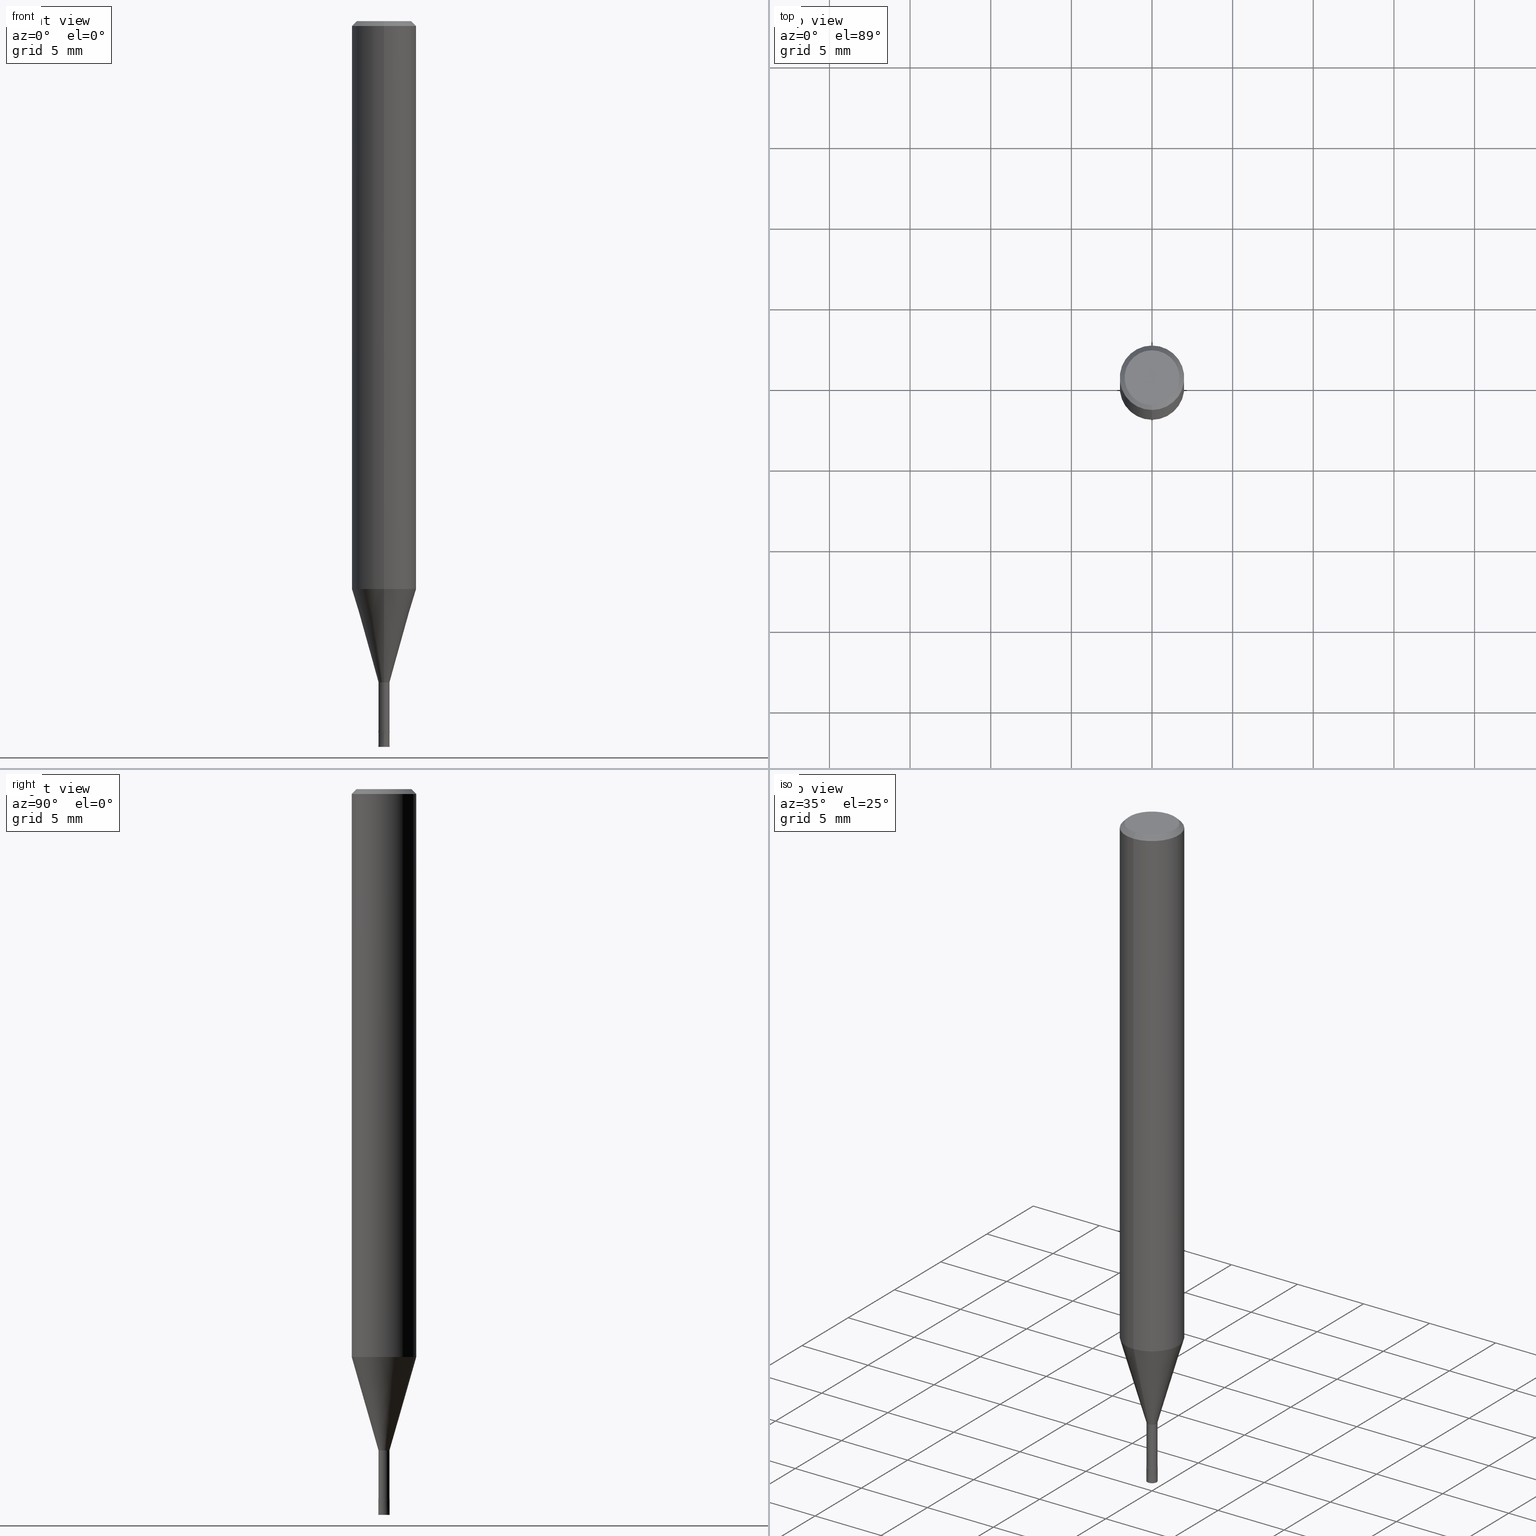
[diagram: canonical four-view strip — front | top / right | iso, engineering-drawing reading convention]
A machine part, canonical four-view strip (front | top / right | iso — engineering-drawing reading convention). The complete STEP part file that produces these views, byte-faithful:
ISO-10303-21;
HEADER;
FILE_DESCRIPTION(('no description'),'unknown implementation level');
FILE_NAME('HLS2007-040-Huellk.stp','  ',('CIMSOURCE GmbH'),('CADClick - KiM GmbH - www.kimweb.de'),'unknown preprocess','ACIS','unknown authorization');
FILE_SCHEMA(('automotive_design'));
ENDSEC;
DATA;
#1=MECHANICAL_DESIGN_GEOMETRIC_PRESENTATION_REPRESENTATION(' ',(#14,#15,#16,#17,#18,#19,#20,#21,#22,#23,#24,#25,#26,#27,#28,#29,#30,#31,#32,#33,#34,#35,#36,#37,#38,#39,#40,#41,#42,#43,#44,#45,#46,#47,#48,#49,#50,#51,#52,#53,#54,#55,#56,#57,#58,#59,#60,#61,#62,#63,#64,#65,#66,#67,#68,#69,#70,#71,#72),#10);
#2=PRODUCT_DEFINITION_CONTEXT('',#73,'design');
#3=APPLICATION_PROTOCOL_DEFINITION('INTERNATIONAL STANDARD','automotive_design',1994,#73);
#4=PRODUCT_CATEGORY_RELATIONSHIP('NONE','NONE',#74,#75);
#5=SHAPE_DEFINITION_REPRESENTATION(#76,#77);
#6=PRODUCT_DEFINITION_CONTEXT('',#78,'design');
#7=APPLICATION_PROTOCOL_DEFINITION('INTERNATIONAL STANDARD','automotive_design',1994,#78);
#8=PRODUCT_CATEGORY_RELATIONSHIP('NONE','NONE',#79,#80);
#9=SHAPE_DEFINITION_REPRESENTATION(#81,#82);
#10= (GEOMETRIC_REPRESENTATION_CONTEXT(3)GLOBAL_UNCERTAINTY_ASSIGNED_CONTEXT((#85))GLOBAL_UNIT_ASSIGNED_CONTEXT((#87,#88,#89))REPRESENTATION_CONTEXT('NONE','WORKSPACE'));
#14=STYLED_ITEM('',(#91),#92);
#15=STYLED_ITEM('',(#93),#94);
#16=STYLED_ITEM('',(#95),#96);
#17=STYLED_ITEM('',(#97),#98);
#18=STYLED_ITEM('',(#99),#100);
#19=STYLED_ITEM('',(#101),#102);
#20=STYLED_ITEM('',(#103),#104);
#21=STYLED_ITEM('',(#105),#106);
#22=STYLED_ITEM('',(#107),#108);
#23=STYLED_ITEM('',(#109),#110);
#24=STYLED_ITEM('',(#111),#112);
#25=STYLED_ITEM('',(#113),#114);
#26=STYLED_ITEM('',(#115),#116);
#27=STYLED_ITEM('',(#117),#118);
#28=STYLED_ITEM('',(#119),#120);
#29=STYLED_ITEM('',(#121),#122);
#30=STYLED_ITEM('',(#123),#124);
#31=STYLED_ITEM('',(#125),#126);
#32=STYLED_ITEM('',(#127),#128);
#33=STYLED_ITEM('',(#129),#130);
#34=STYLED_ITEM('',(#131),#132);
#35=STYLED_ITEM('',(#133),#134);
#36=STYLED_ITEM('',(#135),#136);
#37=STYLED_ITEM('',(#137),#138);
#38=STYLED_ITEM('',(#139),#140);
#39=STYLED_ITEM('',(#141),#142);
#40=STYLED_ITEM('',(#143),#144);
#41=STYLED_ITEM('',(#145),#146);
#42=STYLED_ITEM('',(#147),#148);
#43=STYLED_ITEM('',(#149),#150);
#44=STYLED_ITEM('',(#151),#152);
#45=STYLED_ITEM('',(#153),#154);
#46=STYLED_ITEM('',(#155),#156);
#47=STYLED_ITEM('',(#157),#158);
#48=STYLED_ITEM('',(#159),#160);
#49=STYLED_ITEM('',(#161),#162);
#50=STYLED_ITEM('',(#163),#164);
#51=STYLED_ITEM('',(#165),#166);
#52=STYLED_ITEM('',(#167),#168);
#53=STYLED_ITEM('',(#169),#170);
#54=STYLED_ITEM('',(#171),#172);
#55=STYLED_ITEM('',(#173),#174);
#56=STYLED_ITEM('',(#175),#176);
#57=STYLED_ITEM('',(#177),#178);
#58=STYLED_ITEM('',(#179),#180);
#59=STYLED_ITEM('',(#181),#182);
#60=STYLED_ITEM('',(#183),#184);
#61=STYLED_ITEM('',(#185),#186);
#62=STYLED_ITEM('',(#187),#188);
#63=STYLED_ITEM('',(#189),#190);
#64=STYLED_ITEM('',(#191),#192);
#65=STYLED_ITEM('',(#193),#194);
#66=STYLED_ITEM('',(#195),#196);
#67=STYLED_ITEM('',(#197),#198);
#68=STYLED_ITEM('',(#199),#200);
#69=STYLED_ITEM('',(#201),#202);
#70=STYLED_ITEM('',(#203),#204);
#71=STYLED_ITEM('',(#205),#206);
#72=STYLED_ITEM('',(#207),#208);
#73=APPLICATION_CONTEXT(' ');
#74=PRODUCT_CATEGORY('part','NONE');
#75=PRODUCT_RELATED_PRODUCT_CATEGORY('detail',' ',(#209));
#76=PRODUCT_DEFINITION_SHAPE('NONE','NONE',#210);
#77=ADVANCED_BREP_SHAPE_REPRESENTATION('1',(#186,#211),#10);
#78=APPLICATION_CONTEXT(' ');
#79=PRODUCT_CATEGORY('part','NONE');
#80=PRODUCT_RELATED_PRODUCT_CATEGORY('detail',' ',(#212));
#81=PRODUCT_DEFINITION_SHAPE('NONE','NONE',#213);
#82=ADVANCED_BREP_SHAPE_REPRESENTATION('2',(#114,#214),#10);
#85=UNCERTAINTY_MEASURE_WITH_UNIT(LENGTH_MEASURE(1.0E-006),#87,'','');
#87= (CONVERSION_BASED_UNIT('MILLIMETRE',#217)LENGTH_UNIT()NAMED_UNIT(#220));
#88= (NAMED_UNIT(#222)PLANE_ANGLE_UNIT()SI_UNIT($,.RADIAN.));
#89= (NAMED_UNIT(#222)SOLID_ANGLE_UNIT()SI_UNIT($,.STERADIAN.));
#91=PRESENTATION_STYLE_ASSIGNMENT((#228));
#92=ADVANCED_FACE('',(#229),#230,.T.);
#93=PRESENTATION_STYLE_ASSIGNMENT((#231));
#94=ADVANCED_FACE('',(#232),#233,.T.);
#95=PRESENTATION_STYLE_ASSIGNMENT((#234));
#96=ADVANCED_FACE('',(#235),#236,.T.);
#97=PRESENTATION_STYLE_ASSIGNMENT((#237));
#98=EDGE_CURVE('',#112,#108,#238,.T.);
#99=PRESENTATION_STYLE_ASSIGNMENT((#239));
#100=EDGE_CURVE('',#146,#194,#240,.T.);
#101=PRESENTATION_STYLE_ASSIGNMENT((#241));
#102=VERTEX_POINT('',#242);
#103=PRESENTATION_STYLE_ASSIGNMENT((#243));
#104=VERTEX_POINT('',#244);
#105=PRESENTATION_STYLE_ASSIGNMENT((#245));
#106=EDGE_CURVE('',#104,#184,#246,.T.);
#107=PRESENTATION_STYLE_ASSIGNMENT((#247));
#108=VERTEX_POINT('',#248);
#109=PRESENTATION_STYLE_ASSIGNMENT((#249));
#110=VERTEX_POINT('',#250);
#111=PRESENTATION_STYLE_ASSIGNMENT((#251));
#112=VERTEX_POINT('',#252);
#113=PRESENTATION_STYLE_ASSIGNMENT((#253));
#114=MANIFOLD_SOLID_BREP('2',#254);
#115=PRESENTATION_STYLE_ASSIGNMENT((#255));
#116=EDGE_CURVE('',#192,#200,#256,.T.);
#117=PRESENTATION_STYLE_ASSIGNMENT((#257));
#118=EDGE_CURVE('',#194,#146,#258,.T.);
#119=PRESENTATION_STYLE_ASSIGNMENT((#259));
#120=ADVANCED_FACE('',(#260),#261,.T.);
#121=PRESENTATION_STYLE_ASSIGNMENT((#262));
#122=EDGE_CURVE('',#184,#104,#263,.T.);
#123=PRESENTATION_STYLE_ASSIGNMENT((#264));
#124=EDGE_CURVE('',#188,#130,#265,.T.);
#125=PRESENTATION_STYLE_ASSIGNMENT((#266));
#126=EDGE_CURVE('',#112,#154,#267,.T.);
#127=PRESENTATION_STYLE_ASSIGNMENT((#268));
#128=ADVANCED_FACE('',(#269),#270,.T.);
#129=PRESENTATION_STYLE_ASSIGNMENT((#271));
#130=VERTEX_POINT('',#272);
#131=PRESENTATION_STYLE_ASSIGNMENT((#273));
#132=ADVANCED_FACE('',(#274),#275,.T.);
#133=PRESENTATION_STYLE_ASSIGNMENT((#276));
#134=EDGE_CURVE('',#154,#112,#277,.T.);
#135=PRESENTATION_STYLE_ASSIGNMENT((#278));
#136=EDGE_CURVE('',#192,#146,#279,.T.);
#137=PRESENTATION_STYLE_ASSIGNMENT((#280));
#138=EDGE_CURVE('',#110,#154,#281,.T.);
#139=PRESENTATION_STYLE_ASSIGNMENT((#282));
#140=VERTEX_POINT('',#283);
#141=PRESENTATION_STYLE_ASSIGNMENT((#284));
#142=EDGE_CURVE('',#140,#196,#285,.T.);
#143=PRESENTATION_STYLE_ASSIGNMENT((#286));
#144=ADVANCED_FACE('',(#287),#288,.T.);
#145=PRESENTATION_STYLE_ASSIGNMENT((#289));
#146=VERTEX_POINT('',#290);
#147=PRESENTATION_STYLE_ASSIGNMENT((#291));
#148=EDGE_CURVE('',#130,#112,#292,.T.);
#149=PRESENTATION_STYLE_ASSIGNMENT((#293));
#150=EDGE_CURVE('',#196,#140,#294,.T.);
#151=PRESENTATION_STYLE_ASSIGNMENT((#295));
#152=EDGE_CURVE('',#110,#108,#296,.T.);
#153=PRESENTATION_STYLE_ASSIGNMENT((#297));
#154=VERTEX_POINT('',#298);
#155=PRESENTATION_STYLE_ASSIGNMENT((#299));
#156=ADVANCED_FACE('',(#300),#301,.T.);
#157=PRESENTATION_STYLE_ASSIGNMENT((#302));
#158=ADVANCED_FACE('',(#303,#304),#305,.T.);
#159=PRESENTATION_STYLE_ASSIGNMENT((#306));
#160=ADVANCED_FACE('',(#307),#308,.T.);
#161=PRESENTATION_STYLE_ASSIGNMENT((#309));
#162=EDGE_CURVE('',#154,#188,#310,.T.);
#163=PRESENTATION_STYLE_ASSIGNMENT((#311));
#164=EDGE_CURVE('',#140,#184,#312,.T.);
#165=PRESENTATION_STYLE_ASSIGNMENT((#313));
#166=EDGE_CURVE('',#108,#110,#314,.T.);
#167=PRESENTATION_STYLE_ASSIGNMENT((#315));
#168=ADVANCED_FACE('',(#316),#317,.T.);
#169=PRESENTATION_STYLE_ASSIGNMENT((#318));
#170=ADVANCED_FACE('',(#319),#320,.T.);
#171=PRESENTATION_STYLE_ASSIGNMENT((#321));
#172=ADVANCED_FACE('',(#322),#323,.T.);
#173=PRESENTATION_STYLE_ASSIGNMENT((#324));
#174=EDGE_CURVE('',#130,#188,#325,.T.);
#175=PRESENTATION_STYLE_ASSIGNMENT((#326));
#176=EDGE_CURVE('',#204,#104,#327,.T.);
#177=PRESENTATION_STYLE_ASSIGNMENT((#328));
#178=EDGE_CURVE('',#104,#196,#329,.T.);
#179=PRESENTATION_STYLE_ASSIGNMENT((#330));
#180=EDGE_CURVE('',#204,#102,#331,.T.);
#181=PRESENTATION_STYLE_ASSIGNMENT((#332));
#182=EDGE_CURVE('',#194,#200,#333,.T.);
#183=PRESENTATION_STYLE_ASSIGNMENT((#334));
#184=VERTEX_POINT('',#335);
#185=PRESENTATION_STYLE_ASSIGNMENT((#336));
#186=MANIFOLD_SOLID_BREP('1',#337);
#187=PRESENTATION_STYLE_ASSIGNMENT((#338));
#188=VERTEX_POINT('',#339);
#189=PRESENTATION_STYLE_ASSIGNMENT((#340));
#190=EDGE_CURVE('',#200,#192,#341,.T.);
#191=PRESENTATION_STYLE_ASSIGNMENT((#342));
#192=VERTEX_POINT('',#343);
#193=PRESENTATION_STYLE_ASSIGNMENT((#344));
#194=VERTEX_POINT('',#345);
#195=PRESENTATION_STYLE_ASSIGNMENT((#346));
#196=VERTEX_POINT('',#347);
#197=PRESENTATION_STYLE_ASSIGNMENT((#348));
#198=EDGE_CURVE('',#102,#204,#349,.T.);
#199=PRESENTATION_STYLE_ASSIGNMENT((#350));
#200=VERTEX_POINT('',#351);
#201=PRESENTATION_STYLE_ASSIGNMENT((#352));
#202=ADVANCED_FACE('',(#353),#354,.T.);
#203=PRESENTATION_STYLE_ASSIGNMENT((#355));
#204=VERTEX_POINT('',#356);
#205=PRESENTATION_STYLE_ASSIGNMENT((#357));
#206=ADVANCED_FACE('',(#358),#359,.T.);
#207=PRESENTATION_STYLE_ASSIGNMENT((#360));
#208=EDGE_CURVE('',#184,#102,#361,.T.);
#209=PRODUCT('1','1','PART-1-DESC',(#362));
#210=PRODUCT_DEFINITION('NONE','NONE',#363,#2);
#211=AXIS2_PLACEMENT_3D('',#364,#365,#366);
#212=PRODUCT('2','2','PART-2-DESC',(#367));
#213=PRODUCT_DEFINITION('NONE','NONE',#368,#6);
#214=AXIS2_PLACEMENT_3D('',#369,#370,#371);
#217=LENGTH_MEASURE_WITH_UNIT(LENGTH_MEASURE(1.0),#372);
#220=DIMENSIONAL_EXPONENTS(1.0,0.0,0.0,0.0,0.0,0.0,0.0);
#222=DIMENSIONAL_EXPONENTS(0.0,0.0,0.0,0.0,0.0,0.0,0.0);
#228=SURFACE_STYLE_USAGE(.BOTH.,#373);
#229=FACE_OUTER_BOUND('',#374,.T.);
#230=PLANE('',#375);
#231=SURFACE_STYLE_USAGE(.BOTH.,#376);
#232=FACE_OUTER_BOUND('',#377,.T.);
#233=PLANE('',#378);
#234=SURFACE_STYLE_USAGE(.BOTH.,#379);
#235=FACE_OUTER_BOUND('',#380,.T.);
#236=CYLINDRICAL_SURFACE('',#381,2.0);
#237=CURVE_STYLE('',#382,POSITIVE_LENGTH_MEASURE(1.0E-006),#383);
#238=LINE('',#384,#385);
#239=CURVE_STYLE('',#386,POSITIVE_LENGTH_MEASURE(1.0E-006),#387);
#240=CIRCLE('',#388,0.35);
#241=POINT_STYLE(' ',#389,POSITIVE_LENGTH_MEASURE(1.0E-006),#390);
#242=CARTESIAN_POINT('',(0.0,2.0,-35.211));
#243=POINT_STYLE(' ',#391,POSITIVE_LENGTH_MEASURE(1.0E-006),#392);
#244=CARTESIAN_POINT('',(2.44921270764475E-016,-2.0,-0.299999999999997));
#245=CURVE_STYLE('',#393,POSITIVE_LENGTH_MEASURE(1.0E-006),#394);
#246=CIRCLE('',#395,2.0);
#247=POINT_STYLE(' ',#396,POSITIVE_LENGTH_MEASURE(1.0E-006),#397);
#248=CARTESIAN_POINT('',(0.0,0.33995,-44.0));
#249=POINT_STYLE(' ',#398,POSITIVE_LENGTH_MEASURE(1.0E-006),#399);
#250=CARTESIAN_POINT('',(4.16304929981917E-017,-0.33995,-44.0));
#251=POINT_STYLE(' ',#400,POSITIVE_LENGTH_MEASURE(1.0E-006),#401);
#252=CARTESIAN_POINT('',(0.0,0.33995,-41.0));
#253=SURFACE_STYLE_USAGE(.BOTH.,#402);
#254=CLOSED_SHELL('',(#168,#94,#144,#92));
#255=CURVE_STYLE('',#403,POSITIVE_LENGTH_MEASURE(1.0E-006),#404);
#256=CIRCLE('',#405,0.3499);
#257=CURVE_STYLE('',#406,POSITIVE_LENGTH_MEASURE(1.0E-006),#407);
#258=CIRCLE('',#408,0.35);
#259=SURFACE_STYLE_USAGE(.BOTH.,#409);
#260=FACE_OUTER_BOUND('',#410,.T.);
#261=CYLINDRICAL_SURFACE('',#411,0.33995);
#262=CURVE_STYLE('',#412,POSITIVE_LENGTH_MEASURE(1.0E-006),#413);
#263=CIRCLE('',#414,2.0);
#264=CURVE_STYLE('',#415,POSITIVE_LENGTH_MEASURE(1.0E-006),#416);
#265=CIRCLE('',#417,1.99995);
#266=CURVE_STYLE('',#418,POSITIVE_LENGTH_MEASURE(1.0E-006),#419);
#267=CIRCLE('',#420,0.33995);
#268=SURFACE_STYLE_USAGE(.BOTH.,#421);
#269=FACE_OUTER_BOUND('',#422,.T.);
#270=PLANE('',#423);
#271=POINT_STYLE(' ',#424,POSITIVE_LENGTH_MEASURE(1.0E-006),#425);
#272=CARTESIAN_POINT('',(0.0,1.99995,-35.211));
#273=SURFACE_STYLE_USAGE(.BOTH.,#426);
#274=FACE_OUTER_BOUND('',#427,.T.);
#275=CYLINDRICAL_SURFACE('',#428,2.0);
#276=CURVE_STYLE('',#429,POSITIVE_LENGTH_MEASURE(1.0E-006),#430);
#277=CIRCLE('',#431,0.33995);
#278=CURVE_STYLE('',#432,POSITIVE_LENGTH_MEASURE(1.0E-006),#433);
#279=LINE('',#434,#435);
#280=CURVE_STYLE('',#436,POSITIVE_LENGTH_MEASURE(1.0E-006),#437);
#281=LINE('',#438,#439);
#282=POINT_STYLE(' ',#440,POSITIVE_LENGTH_MEASURE(1.0E-006),#441);
#283=CARTESIAN_POINT('',(0.0,1.7,0.0));
#284=CURVE_STYLE('',#442,POSITIVE_LENGTH_MEASURE(1.0E-006),#443);
#285=CIRCLE('',#444,1.7);
#286=SURFACE_STYLE_USAGE(.BOTH.,#445);
#287=FACE_OUTER_BOUND('',#446,.T.);
#288=CONICAL_SURFACE('',#447,0.34995,9.99999996666557E-005);
#289=POINT_STYLE(' ',#448,POSITIVE_LENGTH_MEASURE(1.0E-006),#449);
#290=CARTESIAN_POINT('',(0.0,0.35,-45.0));
#291=CURVE_STYLE('',#450,POSITIVE_LENGTH_MEASURE(1.0E-006),#451);
#292=LINE('',#452,#453);
#293=CURVE_STYLE('',#454,POSITIVE_LENGTH_MEASURE(1.0E-006),#455);
#294=CIRCLE('',#456,1.7);
#295=CURVE_STYLE('',#457,POSITIVE_LENGTH_MEASURE(1.0E-006),#458);
#296=CIRCLE('',#459,0.33995);
#297=POINT_STYLE(' ',#460,POSITIVE_LENGTH_MEASURE(1.0E-006),#461);
#298=CARTESIAN_POINT('',(4.16304929981917E-017,-0.33995,-41.0));
#299=SURFACE_STYLE_USAGE(.BOTH.,#462);
#300=FACE_OUTER_BOUND('',#463,.T.);
#301=PLANE('',#464);
#302=SURFACE_STYLE_USAGE(.BOTH.,#465);
#303=FACE_OUTER_BOUND('',#466,.T.);
#304=FACE_BOUND('',#467,.T.);
#305=PLANE('',#468);
#306=SURFACE_STYLE_USAGE(.BOTH.,#469);
#307=FACE_OUTER_BOUND('',#470,.T.);
#308=CONICAL_SURFACE('',#471,1.85,0.785398163397453);
#309=CURVE_STYLE('',#472,POSITIVE_LENGTH_MEASURE(1.0E-006),#473);
#310=LINE('',#474,#475);
#311=CURVE_STYLE('',#476,POSITIVE_LENGTH_MEASURE(1.0E-006),#477);
#312=LINE('',#478,#479);
#313=CURVE_STYLE('',#480,POSITIVE_LENGTH_MEASURE(1.0E-006),#481);
#314=CIRCLE('',#482,0.33995);
#315=SURFACE_STYLE_USAGE(.BOTH.,#483);
#316=FACE_OUTER_BOUND('',#484,.T.);
#317=CONICAL_SURFACE('',#485,0.34995,9.99999996666557E-005);
#318=SURFACE_STYLE_USAGE(.BOTH.,#486);
#319=FACE_OUTER_BOUND('',#487,.T.);
#320=CYLINDRICAL_SURFACE('',#488,0.33995);
#321=SURFACE_STYLE_USAGE(.BOTH.,#489);
#322=FACE_OUTER_BOUND('',#490,.T.);
#323=CONICAL_SURFACE('',#491,1.16995,0.279257622355071);
#324=CURVE_STYLE('',#492,POSITIVE_LENGTH_MEASURE(1.0E-006),#493);
#325=CIRCLE('',#494,1.99995);
#326=CURVE_STYLE('',#495,POSITIVE_LENGTH_MEASURE(1.0E-006),#496);
#327=LINE('',#497,#498);
#328=CURVE_STYLE('',#499,POSITIVE_LENGTH_MEASURE(1.0E-006),#500);
#329=LINE('',#501,#502);
#330=CURVE_STYLE('',#503,POSITIVE_LENGTH_MEASURE(1.0E-006),#504);
#331=CIRCLE('',#505,2.0);
#332=CURVE_STYLE('',#506,POSITIVE_LENGTH_MEASURE(1.0E-006),#507);
#333=LINE('',#508,#509);
#334=POINT_STYLE(' ',#510,POSITIVE_LENGTH_MEASURE(1.0E-006),#511);
#335=CARTESIAN_POINT('',(0.0,2.0,-0.299999999999997));
#336=SURFACE_STYLE_USAGE(.BOTH.,#512);
#337=CLOSED_SHELL('',(#170,#202,#132,#206,#158,#156,#160,#96,#172,#120,#128));
#338=POINT_STYLE(' ',#513,POSITIVE_LENGTH_MEASURE(1.0E-006),#514);
#339=CARTESIAN_POINT('',(2.44915147732706E-016,-1.99995,-35.211));
#340=CURVE_STYLE('',#515,POSITIVE_LENGTH_MEASURE(1.0E-006),#516);
#341=CIRCLE('',#517,0.3499);
#342=POINT_STYLE(' ',#518,POSITIVE_LENGTH_MEASURE(1.0E-006),#519);
#343=CARTESIAN_POINT('',(0.0,0.3499,-44.0));
#344=POINT_STYLE(' ',#520,POSITIVE_LENGTH_MEASURE(1.0E-006),#521);
#345=CARTESIAN_POINT('',(4.28612223837832E-017,-0.35,-45.0));
#346=POINT_STYLE(' ',#522,POSITIVE_LENGTH_MEASURE(1.0E-006),#523);
#347=CARTESIAN_POINT('',(2.08183080149804E-016,-1.7,0.0));
#348=CURVE_STYLE('',#524,POSITIVE_LENGTH_MEASURE(1.0E-006),#525);
#349=CIRCLE('',#526,2.0);
#350=POINT_STYLE(' ',#527,POSITIVE_LENGTH_MEASURE(1.0E-006),#528);
#351=CARTESIAN_POINT('',(4.2848976320245E-017,-0.3499,-44.0));
#352=SURFACE_STYLE_USAGE(.BOTH.,#529);
#353=FACE_OUTER_BOUND('',#530,.T.);
#354=CONICAL_SURFACE('',#531,1.16995,0.279257622355071);
#355=POINT_STYLE(' ',#532,POSITIVE_LENGTH_MEASURE(1.0E-006),#533);
#356=CARTESIAN_POINT('',(2.44921270764475E-016,-2.0,-35.211));
#357=SURFACE_STYLE_USAGE(.BOTH.,#534);
#358=FACE_OUTER_BOUND('',#535,.T.);
#359=CONICAL_SURFACE('',#536,1.85,0.785398163397453);
#360=CURVE_STYLE('',#537,POSITIVE_LENGTH_MEASURE(1.0E-006),#538);
#361=LINE('',#539,#540);
#362=PRODUCT_CONTEXT('',#73,'mechanical');
#363=PRODUCT_DEFINITION_FORMATION_WITH_SPECIFIED_SOURCE(' ','NONE',#209,.NOT_KNOWN.);
#364=CARTESIAN_POINT('',(0.0,0.0,0.0));
#365=DIRECTION('',(0.0,0.0,1.0));
#366=DIRECTION('',(1.0,0.0,0.0));
#367=PRODUCT_CONTEXT('',#78,'mechanical');
#368=PRODUCT_DEFINITION_FORMATION_WITH_SPECIFIED_SOURCE(' ','NONE',#212,.NOT_KNOWN.);
#369=CARTESIAN_POINT('',(0.0,0.0,0.0));
#370=DIRECTION('',(0.0,0.0,1.0));
#371=DIRECTION('',(1.0,0.0,0.0));
#372= (NAMED_UNIT(#220)LENGTH_UNIT()SI_UNIT(.MILLI.,.METRE.));
#373=SURFACE_SIDE_STYLE('',(#542));
#374=EDGE_LOOP('',(#543,#544));
#375=AXIS2_PLACEMENT_3D('',#545,#546,#547);
#376=SURFACE_SIDE_STYLE('',(#548));
#377=EDGE_LOOP('',(#549,#550));
#378=AXIS2_PLACEMENT_3D('',#551,#552,#553);
#379=SURFACE_SIDE_STYLE('',(#554));
#380=EDGE_LOOP('',(#555,#556,#557,#558));
#381=AXIS2_PLACEMENT_3D('',#559,#560,#561);
#382=DRAUGHTING_PRE_DEFINED_CURVE_FONT('continuous');
#383=COLOUR_RGB('',0.498039215803146,0.498039215803146,0.498039215803146);
#384=CARTESIAN_POINT('',(-4.16304929981917E-017,0.33995,-42.5));
#385=VECTOR('',#562,1.0);
#386=DRAUGHTING_PRE_DEFINED_CURVE_FONT('continuous');
#387=COLOUR_RGB('',0.800000011920929,0.800000011920929,0.800000011920929);
#388=AXIS2_PLACEMENT_3D('',#563,#564,#565);
#389=PRE_DEFINED_MARKER('');
#390=COLOUR_RGB('',0.498039215803146,0.498039215803146,0.498039215803146);
#391=PRE_DEFINED_MARKER('');
#392=COLOUR_RGB('',0.498039215803146,0.498039215803146,0.498039215803146);
#393=DRAUGHTING_PRE_DEFINED_CURVE_FONT('continuous');
#394=COLOUR_RGB('',0.498039215803146,0.498039215803146,0.498039215803146);
#395=AXIS2_PLACEMENT_3D('',#566,#567,#568);
#396=PRE_DEFINED_MARKER('');
#397=COLOUR_RGB('',0.498039215803146,0.498039215803146,0.498039215803146);
#398=PRE_DEFINED_MARKER('');
#399=COLOUR_RGB('',0.498039215803146,0.498039215803146,0.498039215803146);
#400=PRE_DEFINED_MARKER('');
#401=COLOUR_RGB('',0.498039215803146,0.498039215803146,0.498039215803146);
#402=SURFACE_SIDE_STYLE('',(#569));
#403=DRAUGHTING_PRE_DEFINED_CURVE_FONT('continuous');
#404=COLOUR_RGB('',0.800000011920929,0.800000011920929,0.800000011920929);
#405=AXIS2_PLACEMENT_3D('',#570,#571,#572);
#406=DRAUGHTING_PRE_DEFINED_CURVE_FONT('continuous');
#407=COLOUR_RGB('',0.800000011920929,0.800000011920929,0.800000011920929);
#408=AXIS2_PLACEMENT_3D('',#573,#574,#575);
#409=SURFACE_SIDE_STYLE('',(#576));
#410=EDGE_LOOP('',(#577,#578,#579,#580));
#411=AXIS2_PLACEMENT_3D('',#581,#582,#583);
#412=DRAUGHTING_PRE_DEFINED_CURVE_FONT('continuous');
#413=COLOUR_RGB('',0.498039215803146,0.498039215803146,0.498039215803146);
#414=AXIS2_PLACEMENT_3D('',#584,#585,#586);
#415=DRAUGHTING_PRE_DEFINED_CURVE_FONT('continuous');
#416=COLOUR_RGB('',0.498039215803146,0.498039215803146,0.498039215803146);
#417=AXIS2_PLACEMENT_3D('',#587,#588,#589);
#418=DRAUGHTING_PRE_DEFINED_CURVE_FONT('continuous');
#419=COLOUR_RGB('',0.498039215803146,0.498039215803146,0.498039215803146);
#420=AXIS2_PLACEMENT_3D('',#590,#591,#592);
#421=SURFACE_SIDE_STYLE('',(#593));
#422=EDGE_LOOP('',(#594,#595));
#423=AXIS2_PLACEMENT_3D('',#596,#597,#598);
#424=PRE_DEFINED_MARKER('');
#425=COLOUR_RGB('',0.498039215803146,0.498039215803146,0.498039215803146);
#426=SURFACE_SIDE_STYLE('',(#599));
#427=EDGE_LOOP('',(#600,#601,#602,#603));
#428=AXIS2_PLACEMENT_3D('',#604,#605,#606);
#429=DRAUGHTING_PRE_DEFINED_CURVE_FONT('continuous');
#430=COLOUR_RGB('',0.498039215803146,0.498039215803146,0.498039215803146);
#431=AXIS2_PLACEMENT_3D('',#607,#608,#609);
#432=DRAUGHTING_PRE_DEFINED_CURVE_FONT('continuous');
#433=COLOUR_RGB('',0.800000011920929,0.800000011920929,0.800000011920929);
#434=CARTESIAN_POINT('',(-4.28550993520141E-017,0.34995,-44.5));
#435=VECTOR('',#610,1.0);
#436=DRAUGHTING_PRE_DEFINED_CURVE_FONT('continuous');
#437=COLOUR_RGB('',0.498039215803146,0.498039215803146,0.498039215803146);
#438=CARTESIAN_POINT('',(4.16304929981917E-017,-0.33995,-42.5));
#439=VECTOR('',#611,1.0);
#440=PRE_DEFINED_MARKER('');
#441=COLOUR_RGB('',0.498039215803146,0.498039215803146,0.498039215803146);
#442=DRAUGHTING_PRE_DEFINED_CURVE_FONT('continuous');
#443=COLOUR_RGB('',0.498039215803146,0.498039215803146,0.498039215803146);
#444=AXIS2_PLACEMENT_3D('',#612,#613,#614);
#445=SURFACE_SIDE_STYLE('',(#615));
#446=EDGE_LOOP('',(#616,#617,#618,#619));
#447=AXIS2_PLACEMENT_3D('',#620,#621,#622);
#448=PRE_DEFINED_MARKER('');
#449=COLOUR_RGB('',0.800000011920929,0.800000011920929,0.800000011920929);
#450=DRAUGHTING_PRE_DEFINED_CURVE_FONT('continuous');
#451=COLOUR_RGB('',0.498039215803146,0.498039215803146,0.498039215803146);
#452=CARTESIAN_POINT('',(-1.43272820365449E-016,1.16995,-38.1055));
#453=VECTOR('',#623,1.0);
#454=DRAUGHTING_PRE_DEFINED_CURVE_FONT('continuous');
#455=COLOUR_RGB('',0.498039215803146,0.498039215803146,0.498039215803146);
#456=AXIS2_PLACEMENT_3D('',#624,#625,#626);
#457=DRAUGHTING_PRE_DEFINED_CURVE_FONT('continuous');
#458=COLOUR_RGB('',0.498039215803146,0.498039215803146,0.498039215803146);
#459=AXIS2_PLACEMENT_3D('',#627,#628,#629);
#460=PRE_DEFINED_MARKER('');
#461=COLOUR_RGB('',0.498039215803146,0.498039215803146,0.498039215803146);
#462=SURFACE_SIDE_STYLE('',(#630));
#463=EDGE_LOOP('',(#631,#632));
#464=AXIS2_PLACEMENT_3D('',#633,#634,#635);
#465=SURFACE_SIDE_STYLE('',(#636));
#466=EDGE_LOOP('',(#637,#638));
#467=EDGE_LOOP('',(#639,#640));
#468=AXIS2_PLACEMENT_3D('',#641,#642,#643);
#469=SURFACE_SIDE_STYLE('',(#644));
#470=EDGE_LOOP('',(#645,#646,#647,#648));
#471=AXIS2_PLACEMENT_3D('',#649,#650,#651);
#472=DRAUGHTING_PRE_DEFINED_CURVE_FONT('continuous');
#473=COLOUR_RGB('',0.498039215803146,0.498039215803146,0.498039215803146);
#474=CARTESIAN_POINT('',(1.43272820365449E-016,-1.16995,-38.1055));
#475=VECTOR('',#652,1.0);
#476=DRAUGHTING_PRE_DEFINED_CURVE_FONT('continuous');
#477=COLOUR_RGB('',0.498039215803146,0.498039215803146,0.498039215803146);
#478=CARTESIAN_POINT('',(-2.2655217545714E-016,1.85,-0.149999999999999));
#479=VECTOR('',#653,1.0);
#480=DRAUGHTING_PRE_DEFINED_CURVE_FONT('continuous');
#481=COLOUR_RGB('',0.498039215803146,0.498039215803146,0.498039215803146);
#482=AXIS2_PLACEMENT_3D('',#654,#655,#656);
#483=SURFACE_SIDE_STYLE('',(#657));
#484=EDGE_LOOP('',(#658,#659,#660,#661));
#485=AXIS2_PLACEMENT_3D('',#662,#663,#664);
#486=SURFACE_SIDE_STYLE('',(#665));
#487=EDGE_LOOP('',(#666,#667,#668,#669));
#488=AXIS2_PLACEMENT_3D('',#670,#671,#672);
#489=SURFACE_SIDE_STYLE('',(#673));
#490=EDGE_LOOP('',(#674,#675,#676,#677));
#491=AXIS2_PLACEMENT_3D('',#678,#679,#680);
#492=DRAUGHTING_PRE_DEFINED_CURVE_FONT('continuous');
#493=COLOUR_RGB('',0.498039215803146,0.498039215803146,0.498039215803146);
#494=AXIS2_PLACEMENT_3D('',#681,#682,#683);
#495=DRAUGHTING_PRE_DEFINED_CURVE_FONT('continuous');
#496=COLOUR_RGB('',0.498039215803146,0.498039215803146,0.498039215803146);
#497=CARTESIAN_POINT('',(2.44921270764475E-016,-2.0,-17.7555));
#498=VECTOR('',#684,1.0);
#499=DRAUGHTING_PRE_DEFINED_CURVE_FONT('continuous');
#500=COLOUR_RGB('',0.498039215803146,0.498039215803146,0.498039215803146);
#501=CARTESIAN_POINT('',(2.2655217545714E-016,-1.85,-0.149999999999999));
#502=VECTOR('',#685,1.0);
#503=DRAUGHTING_PRE_DEFINED_CURVE_FONT('continuous');
#504=COLOUR_RGB('',0.498039215803146,0.498039215803146,0.498039215803146);
#505=AXIS2_PLACEMENT_3D('',#686,#687,#688);
#506=DRAUGHTING_PRE_DEFINED_CURVE_FONT('continuous');
#507=COLOUR_RGB('',0.800000011920929,0.800000011920929,0.800000011920929);
#508=CARTESIAN_POINT('',(4.28550993520141E-017,-0.34995,-44.5));
#509=VECTOR('',#689,1.0);
#510=PRE_DEFINED_MARKER('');
#511=COLOUR_RGB('',0.498039215803146,0.498039215803146,0.498039215803146);
#512=SURFACE_SIDE_STYLE('',(#690));
#513=PRE_DEFINED_MARKER('');
#514=COLOUR_RGB('',0.498039215803146,0.498039215803146,0.498039215803146);
#515=DRAUGHTING_PRE_DEFINED_CURVE_FONT('continuous');
#516=COLOUR_RGB('',0.800000011920929,0.800000011920929,0.800000011920929);
#517=AXIS2_PLACEMENT_3D('',#691,#692,#693);
#518=PRE_DEFINED_MARKER('');
#519=COLOUR_RGB('',0.800000011920929,0.800000011920929,0.800000011920929);
#520=PRE_DEFINED_MARKER('');
#521=COLOUR_RGB('',0.800000011920929,0.800000011920929,0.800000011920929);
#522=PRE_DEFINED_MARKER('');
#523=COLOUR_RGB('',0.498039215803146,0.498039215803146,0.498039215803146);
#524=DRAUGHTING_PRE_DEFINED_CURVE_FONT('continuous');
#525=COLOUR_RGB('',0.498039215803146,0.498039215803146,0.498039215803146);
#526=AXIS2_PLACEMENT_3D('',#694,#695,#696);
#527=PRE_DEFINED_MARKER('');
#528=COLOUR_RGB('',0.800000011920929,0.800000011920929,0.800000011920929);
#529=SURFACE_SIDE_STYLE('',(#697));
#530=EDGE_LOOP('',(#698,#699,#700,#701));
#531=AXIS2_PLACEMENT_3D('',#702,#703,#704);
#532=PRE_DEFINED_MARKER('');
#533=COLOUR_RGB('',0.498039215803146,0.498039215803146,0.498039215803146);
#534=SURFACE_SIDE_STYLE('',(#705));
#535=EDGE_LOOP('',(#706,#707,#708,#709));
#536=AXIS2_PLACEMENT_3D('',#710,#711,#712);
#537=DRAUGHTING_PRE_DEFINED_CURVE_FONT('continuous');
#538=COLOUR_RGB('',0.498039215803146,0.498039215803146,0.498039215803146);
#539=CARTESIAN_POINT('',(-2.44921270764475E-016,2.0,-17.7555));
#540=VECTOR('',#713,1.0);
#542=SURFACE_STYLE_FILL_AREA(#714);
#543=ORIENTED_EDGE('',*,*,#100,.T.);
#544=ORIENTED_EDGE('',*,*,#118,.T.);
#545=CARTESIAN_POINT('',(0.0,0.1725,-45.0));
#546=DIRECTION('',(0.0,0.0,-1.0));
#547=DIRECTION('',(0.0,1.0,0.0));
#548=SURFACE_STYLE_FILL_AREA(#715);
#549=ORIENTED_EDGE('',*,*,#116,.F.);
#550=ORIENTED_EDGE('',*,*,#190,.F.);
#551=CARTESIAN_POINT('',(0.0,0.17495,-44.0));
#552=DIRECTION('',(-0.0,0.0,1.0));
#553=DIRECTION('',(0.0,-1.0,0.0));
#554=SURFACE_STYLE_FILL_AREA(#716);
#555=ORIENTED_EDGE('',*,*,#208,.T.);
#556=ORIENTED_EDGE('',*,*,#180,.F.);
#557=ORIENTED_EDGE('',*,*,#176,.T.);
#558=ORIENTED_EDGE('',*,*,#106,.T.);
#559=CARTESIAN_POINT('',(0.0,0.0,-17.7555));
#560=DIRECTION('',(-0.0,-0.0,1.0));
#561=DIRECTION('',(0.0,1.0,0.0));
#562=DIRECTION('',(0.0,0.0,-1.0));
#563=CARTESIAN_POINT('',(0.0,0.0,-45.0));
#564=DIRECTION('',(0.0,0.0,-1.0));
#565=DIRECTION('',(0.0,1.0,0.0));
#566=CARTESIAN_POINT('',(0.0,0.0,-0.299999999999997));
#567=DIRECTION('',(0.0,0.0,-1.0));
#568=DIRECTION('',(0.0,1.0,0.0));
#569=SURFACE_STYLE_FILL_AREA(#717);
#570=CARTESIAN_POINT('',(0.0,0.0,-44.0));
#571=DIRECTION('',(0.0,0.0,-1.0));
#572=DIRECTION('',(0.0,1.0,0.0));
#573=CARTESIAN_POINT('',(0.0,0.0,-45.0));
#574=DIRECTION('',(0.0,0.0,-1.0));
#575=DIRECTION('',(0.0,1.0,0.0));
#576=SURFACE_STYLE_FILL_AREA(#718);
#577=ORIENTED_EDGE('',*,*,#98,.T.);
#578=ORIENTED_EDGE('',*,*,#152,.F.);
#579=ORIENTED_EDGE('',*,*,#138,.T.);
#580=ORIENTED_EDGE('',*,*,#134,.T.);
#581=CARTESIAN_POINT('',(0.0,0.0,-42.5));
#582=DIRECTION('',(-0.0,-0.0,1.0));
#583=DIRECTION('',(0.0,1.0,0.0));
#584=CARTESIAN_POINT('',(0.0,0.0,-0.299999999999997));
#585=DIRECTION('',(0.0,0.0,-1.0));
#586=DIRECTION('',(0.0,1.0,0.0));
#587=CARTESIAN_POINT('',(0.0,0.0,-35.211));
#588=DIRECTION('',(0.0,0.0,-1.0));
#589=DIRECTION('',(0.0,1.0,0.0));
#590=CARTESIAN_POINT('',(0.0,0.0,-41.0));
#591=DIRECTION('',(0.0,0.0,-1.0));
#592=DIRECTION('',(0.0,1.0,0.0));
#593=SURFACE_STYLE_FILL_AREA(#719);
#594=ORIENTED_EDGE('',*,*,#166,.T.);
#595=ORIENTED_EDGE('',*,*,#152,.T.);
#596=CARTESIAN_POINT('',(0.0,0.169975,-44.0));
#597=DIRECTION('',(0.0,0.0,-1.0));
#598=DIRECTION('',(0.0,1.0,0.0));
#599=SURFACE_STYLE_FILL_AREA(#720);
#600=ORIENTED_EDGE('',*,*,#208,.F.);
#601=ORIENTED_EDGE('',*,*,#122,.T.);
#602=ORIENTED_EDGE('',*,*,#176,.F.);
#603=ORIENTED_EDGE('',*,*,#198,.F.);
#604=CARTESIAN_POINT('',(0.0,0.0,-17.7555));
#605=DIRECTION('',(-0.0,-0.0,1.0));
#606=DIRECTION('',(0.0,1.0,0.0));
#607=CARTESIAN_POINT('',(0.0,0.0,-41.0));
#608=DIRECTION('',(0.0,0.0,-1.0));
#609=DIRECTION('',(0.0,1.0,0.0));
#610=DIRECTION('',(-1.22460634769921E-020,9.9999999499989E-005,-0.999999995));
#611=DIRECTION('',(-0.0,-0.0,1.0));
#612=CARTESIAN_POINT('',(0.0,0.0,0.0));
#613=DIRECTION('',(0.0,0.0,-1.0));
#614=DIRECTION('',(0.0,1.0,0.0));
#615=SURFACE_STYLE_FILL_AREA(#721);
#616=ORIENTED_EDGE('',*,*,#136,.T.);
#617=ORIENTED_EDGE('',*,*,#118,.F.);
#618=ORIENTED_EDGE('',*,*,#182,.T.);
#619=ORIENTED_EDGE('',*,*,#190,.T.);
#620=CARTESIAN_POINT('',(0.0,0.0,-44.5));
#621=DIRECTION('',(0.0,-0.0,-1.0));
#622=DIRECTION('',(0.0,1.0,0.0));
#623=DIRECTION('',(3.37553074882733E-017,-0.275642106403519,-0.961260333716851));
#624=CARTESIAN_POINT('',(0.0,0.0,0.0));
#625=DIRECTION('',(0.0,0.0,-1.0));
#626=DIRECTION('',(0.0,1.0,0.0));
#627=CARTESIAN_POINT('',(0.0,0.0,-44.0));
#628=DIRECTION('',(0.0,0.0,-1.0));
#629=DIRECTION('',(0.0,1.0,0.0));
#630=SURFACE_STYLE_FILL_AREA(#722);
#631=ORIENTED_EDGE('',*,*,#142,.F.);
#632=ORIENTED_EDGE('',*,*,#150,.F.);
#633=CARTESIAN_POINT('',(0.0,0.85,0.0));
#634=DIRECTION('',(-0.0,0.0,1.0));
#635=DIRECTION('',(0.0,-1.0,0.0));
#636=SURFACE_STYLE_FILL_AREA(#723);
#637=ORIENTED_EDGE('',*,*,#198,.T.);
#638=ORIENTED_EDGE('',*,*,#180,.T.);
#639=ORIENTED_EDGE('',*,*,#174,.F.);
#640=ORIENTED_EDGE('',*,*,#124,.F.);
#641=CARTESIAN_POINT('',(0.0,1.0,-35.211));
#642=DIRECTION('',(0.0,0.0,-1.0));
#643=DIRECTION('',(0.0,1.0,0.0));
#644=SURFACE_STYLE_FILL_AREA(#724);
#645=ORIENTED_EDGE('',*,*,#164,.T.);
#646=ORIENTED_EDGE('',*,*,#106,.F.);
#647=ORIENTED_EDGE('',*,*,#178,.T.);
#648=ORIENTED_EDGE('',*,*,#150,.T.);
#649=CARTESIAN_POINT('',(0.0,0.0,-0.149999999999999));
#650=DIRECTION('',(0.0,-0.0,-1.0));
#651=DIRECTION('',(0.0,1.0,0.0));
#652=DIRECTION('',(3.37553074882733E-017,-0.275642106403519,0.961260333716851));
#653=DIRECTION('',(-8.6592745707194E-017,0.707106781186551,-0.707106781186544));
#654=CARTESIAN_POINT('',(0.0,0.0,-44.0));
#655=DIRECTION('',(0.0,0.0,-1.0));
#656=DIRECTION('',(0.0,1.0,0.0));
#657=SURFACE_STYLE_FILL_AREA(#725);
#658=ORIENTED_EDGE('',*,*,#136,.F.);
#659=ORIENTED_EDGE('',*,*,#116,.T.);
#660=ORIENTED_EDGE('',*,*,#182,.F.);
#661=ORIENTED_EDGE('',*,*,#100,.F.);
#662=CARTESIAN_POINT('',(0.0,0.0,-44.5));
#663=DIRECTION('',(0.0,-0.0,-1.0));
#664=DIRECTION('',(0.0,1.0,0.0));
#665=SURFACE_STYLE_FILL_AREA(#726);
#666=ORIENTED_EDGE('',*,*,#98,.F.);
#667=ORIENTED_EDGE('',*,*,#126,.T.);
#668=ORIENTED_EDGE('',*,*,#138,.F.);
#669=ORIENTED_EDGE('',*,*,#166,.F.);
#670=CARTESIAN_POINT('',(0.0,0.0,-42.5));
#671=DIRECTION('',(-0.0,-0.0,1.0));
#672=DIRECTION('',(0.0,1.0,0.0));
#673=SURFACE_STYLE_FILL_AREA(#727);
#674=ORIENTED_EDGE('',*,*,#148,.T.);
#675=ORIENTED_EDGE('',*,*,#134,.F.);
#676=ORIENTED_EDGE('',*,*,#162,.T.);
#677=ORIENTED_EDGE('',*,*,#124,.T.);
#678=CARTESIAN_POINT('',(0.0,0.0,-38.1055));
#679=DIRECTION('',(-0.0,-0.0,1.0));
#680=DIRECTION('',(0.0,1.0,0.0));
#681=CARTESIAN_POINT('',(0.0,0.0,-35.211));
#682=DIRECTION('',(0.0,0.0,-1.0));
#683=DIRECTION('',(0.0,1.0,0.0));
#684=DIRECTION('',(-0.0,-0.0,1.0));
#685=DIRECTION('',(-8.6592745707194E-017,0.707106781186551,0.707106781186544));
#686=CARTESIAN_POINT('',(0.0,0.0,-35.211));
#687=DIRECTION('',(0.0,0.0,-1.0));
#688=DIRECTION('',(0.0,1.0,0.0));
#689=DIRECTION('',(-1.22460634769921E-020,9.9999999499989E-005,0.999999995));
#690=SURFACE_STYLE_FILL_AREA(#728);
#691=CARTESIAN_POINT('',(0.0,0.0,-44.0));
#692=DIRECTION('',(0.0,0.0,-1.0));
#693=DIRECTION('',(0.0,1.0,0.0));
#694=CARTESIAN_POINT('',(0.0,0.0,-35.211));
#695=DIRECTION('',(0.0,0.0,-1.0));
#696=DIRECTION('',(0.0,1.0,0.0));
#697=SURFACE_STYLE_FILL_AREA(#729);
#698=ORIENTED_EDGE('',*,*,#148,.F.);
#699=ORIENTED_EDGE('',*,*,#174,.T.);
#700=ORIENTED_EDGE('',*,*,#162,.F.);
#701=ORIENTED_EDGE('',*,*,#126,.F.);
#702=CARTESIAN_POINT('',(0.0,0.0,-38.1055));
#703=DIRECTION('',(-0.0,-0.0,1.0));
#704=DIRECTION('',(0.0,1.0,0.0));
#705=SURFACE_STYLE_FILL_AREA(#730);
#706=ORIENTED_EDGE('',*,*,#164,.F.);
#707=ORIENTED_EDGE('',*,*,#142,.T.);
#708=ORIENTED_EDGE('',*,*,#178,.F.);
#709=ORIENTED_EDGE('',*,*,#122,.F.);
#710=CARTESIAN_POINT('',(0.0,0.0,-0.149999999999999));
#711=DIRECTION('',(0.0,-0.0,-1.0));
#712=DIRECTION('',(0.0,1.0,0.0));
#713=DIRECTION('',(0.0,0.0,-1.0));
#714=FILL_AREA_STYLE('',(#731));
#715=FILL_AREA_STYLE('',(#732));
#716=FILL_AREA_STYLE('',(#733));
#717=FILL_AREA_STYLE('',(#734));
#718=FILL_AREA_STYLE('',(#735));
#719=FILL_AREA_STYLE('',(#736));
#720=FILL_AREA_STYLE('',(#737));
#721=FILL_AREA_STYLE('',(#738));
#722=FILL_AREA_STYLE('',(#739));
#723=FILL_AREA_STYLE('',(#740));
#724=FILL_AREA_STYLE('',(#741));
#725=FILL_AREA_STYLE('',(#742));
#726=FILL_AREA_STYLE('',(#743));
#727=FILL_AREA_STYLE('',(#744));
#728=FILL_AREA_STYLE('',(#745));
#729=FILL_AREA_STYLE('',(#746));
#730=FILL_AREA_STYLE('',(#747));
#731=FILL_AREA_STYLE_COLOUR('',#748);
#732=FILL_AREA_STYLE_COLOUR('',#749);
#733=FILL_AREA_STYLE_COLOUR('',#750);
#734=FILL_AREA_STYLE_COLOUR('',#751);
#735=FILL_AREA_STYLE_COLOUR('',#752);
#736=FILL_AREA_STYLE_COLOUR('',#753);
#737=FILL_AREA_STYLE_COLOUR('',#754);
#738=FILL_AREA_STYLE_COLOUR('',#755);
#739=FILL_AREA_STYLE_COLOUR('',#756);
#740=FILL_AREA_STYLE_COLOUR('',#757);
#741=FILL_AREA_STYLE_COLOUR('',#758);
#742=FILL_AREA_STYLE_COLOUR('',#759);
#743=FILL_AREA_STYLE_COLOUR('',#760);
#744=FILL_AREA_STYLE_COLOUR('',#761);
#745=FILL_AREA_STYLE_COLOUR('',#762);
#746=FILL_AREA_STYLE_COLOUR('',#763);
#747=FILL_AREA_STYLE_COLOUR('',#764);
#748=COLOUR_RGB('',0.800000011920929,0.800000011920929,0.800000011920929);
#749=COLOUR_RGB('',0.800000011920929,0.800000011920929,0.800000011920929);
#750=COLOUR_RGB('',0.498039215803146,0.498039215803146,0.498039215803146);
#751=COLOUR_RGB('',0.800000011920929,0.800000011920929,0.800000011920929);
#752=COLOUR_RGB('',0.498039215803146,0.498039215803146,0.498039215803146);
#753=COLOUR_RGB('',0.498039215803146,0.498039215803146,0.498039215803146);
#754=COLOUR_RGB('',0.498039215803146,0.498039215803146,0.498039215803146);
#755=COLOUR_RGB('',0.800000011920929,0.800000011920929,0.800000011920929);
#756=COLOUR_RGB('',0.498039215803146,0.498039215803146,0.498039215803146);
#757=COLOUR_RGB('',0.498039215803146,0.498039215803146,0.498039215803146);
#758=COLOUR_RGB('',0.498039215803146,0.498039215803146,0.498039215803146);
#759=COLOUR_RGB('',0.800000011920929,0.800000011920929,0.800000011920929);
#760=COLOUR_RGB('',0.498039215803146,0.498039215803146,0.498039215803146);
#761=COLOUR_RGB('',0.498039215803146,0.498039215803146,0.498039215803146);
#762=COLOUR_RGB('',0.498039215803146,0.498039215803146,0.498039215803146);
#763=COLOUR_RGB('',0.498039215803146,0.498039215803146,0.498039215803146);
#764=COLOUR_RGB('',0.498039215803146,0.498039215803146,0.498039215803146);
#765=AXIS2_PLACEMENT_3D('PCS',#766,#767,#768);
#766=CARTESIAN_POINT('',(0.0,0.0,0.0));
#767=DIRECTION('',(0.0,0.0,1.0));
#768=DIRECTION('',(1.0,0.0,0.0));
#769=AXIS2_PLACEMENT_3D('CIP',#770,#771,#772);
#770=CARTESIAN_POINT('',(0.0,0.0,-45.0));
#771=DIRECTION('',(0.0,0.0,1.0));
#772=DIRECTION('',(1.0,0.0,0.0));
#773=AXIS2_PLACEMENT_3D('CRP',#774,#775,#776);
#774=CARTESIAN_POINT('',(-0.35,0.0,-45.0));
#775=DIRECTION('',(0.0,0.0,1.0));
#776=DIRECTION('',(1.0,0.0,0.0));
#777=AXIS2_PLACEMENT_3D('MCS',#778,#779,#780);
#778=CARTESIAN_POINT('',(0.0,0.0,-35.211));
#779=DIRECTION('',(0.0,0.0,1.0));
#780=DIRECTION('',(1.0,0.0,0.0));
#781=CONSTRUCTIVE_GEOMETRY_REPRESENTATION_RELATIONSHIP('coordinate systems',$,#77,#782);
#782=CONSTRUCTIVE_GEOMETRY_REPRESENTATION('coordinate systems',(#765,#769,#773,#777),#10);
ENDSEC;
END-ISO-10303-21;
